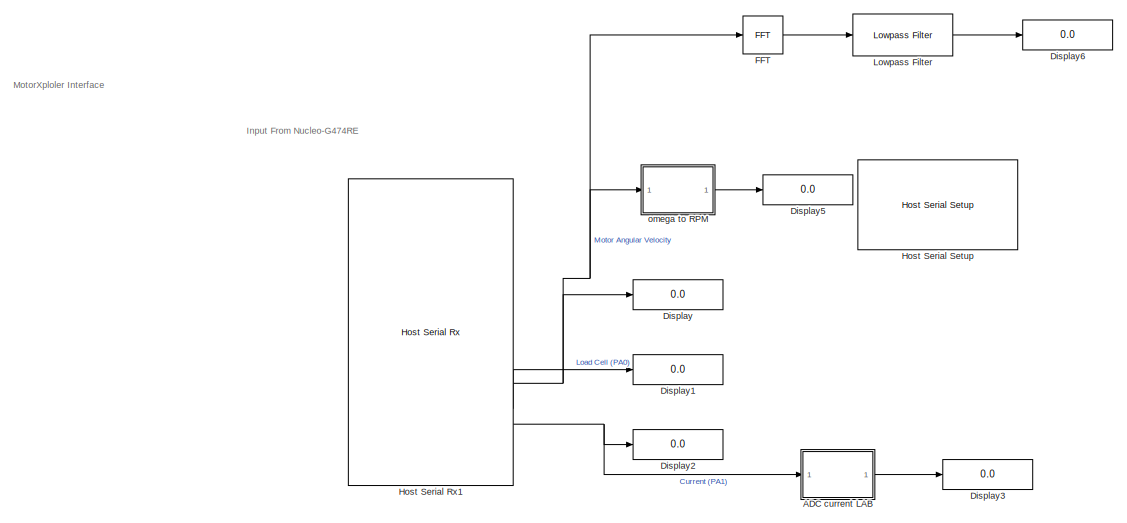
[diagram: root canvas - part 1/2, full width, top band]
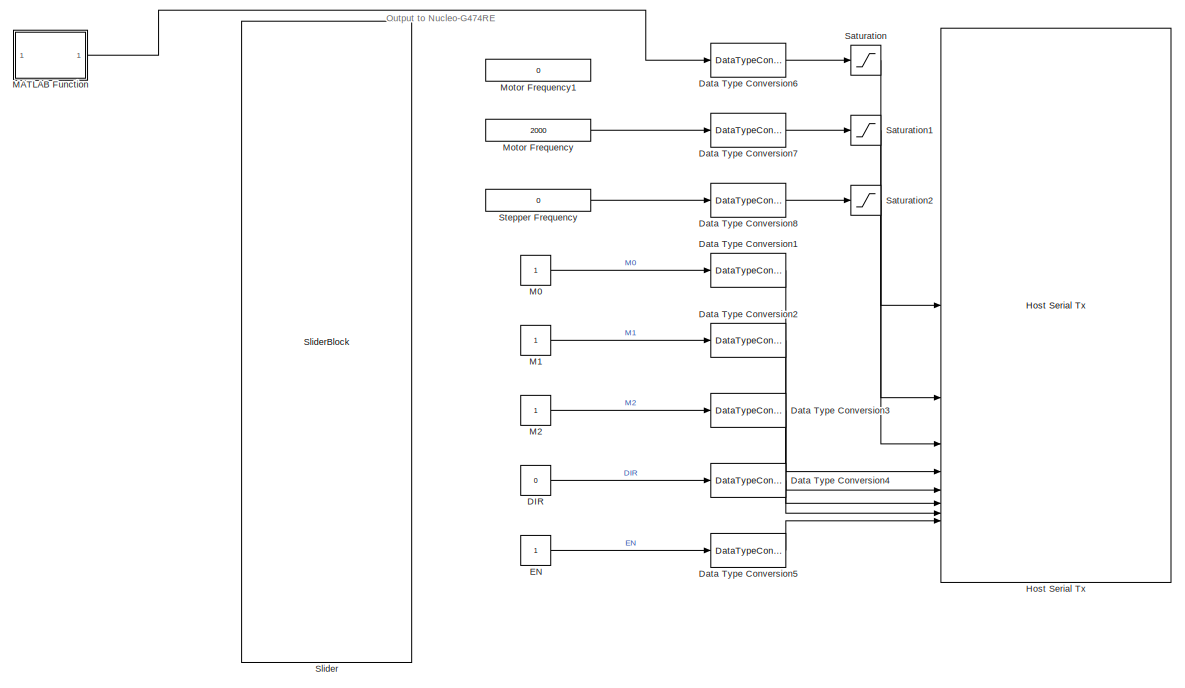
[diagram: root canvas - part 2/2, full width, bottom band]
MODEL slx_57bffe4a3bd2
KIND model
CONFIG AbsTol = auto
CONFIG EnableMultiTasking = off
CONFIG FixedStep = 0.001
CONFIG MaxStep = auto
CONFIG MinStep = auto
CONFIG RelTol = 1e-3
CONFIG SampleTimeConstraint = Unconstrained
CONFIG SolverName = FixedStepAuto
CONFIG StartTime = 0.0
CONFIG StopTime = inf
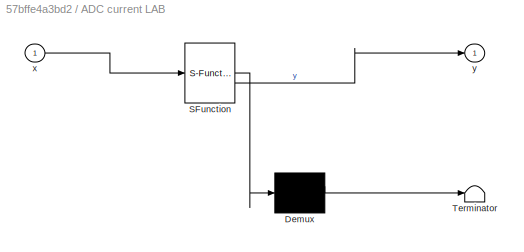
BLOCK [SubSystem] ADC current LAB
  ErrorFcn = Stateflow.Translate.translate
  PermitHierarchicalResolution = ExplicitOnly
  SFBlockType = MATLAB Function
  TreatAsAtomicUnit = on
BLOCK [Demux] ADC current LAB/ Demux 
  Outputs = 1
BLOCK [S-Function] ADC current LAB/ SFunction 
  EnableBusSupport = off
  FunctionName = sf_sfun
  PortCounts = [1 2]
  SFcnIsStateOwnerBlock = off
  SFunctionDeploymentMode = off
  Tag = Stateflow S-Function 2
BLOCK [Terminator] ADC current LAB/ Terminator 
BLOCK [Inport] ADC current LAB/x
BLOCK [Outport] ADC current LAB/y
BLOCK [Constant] DIR
  Value = 0
BLOCK [DataTypeConversion] Data Type Conversion1
  RndMeth = Floor
  SaturateOnIntegerOverflow = off
BLOCK [DataTypeConversion] Data Type Conversion2
  RndMeth = Floor
  SaturateOnIntegerOverflow = off
BLOCK [DataTypeConversion] Data Type Conversion3
  RndMeth = Floor
  SaturateOnIntegerOverflow = off
BLOCK [DataTypeConversion] Data Type Conversion4
  RndMeth = Floor
  SaturateOnIntegerOverflow = off
BLOCK [DataTypeConversion] Data Type Conversion5
  RndMeth = Floor
  SaturateOnIntegerOverflow = off
BLOCK [DataTypeConversion] Data Type Conversion6
  RndMeth = Floor
  SaturateOnIntegerOverflow = off
BLOCK [DataTypeConversion] Data Type Conversion7
  RndMeth = Floor
  SaturateOnIntegerOverflow = off
BLOCK [DataTypeConversion] Data Type Conversion8
  RndMeth = Floor
  SaturateOnIntegerOverflow = off
BLOCK [Display] Display
  Decimation = 1
BLOCK [Display] Display1
  Decimation = 1
BLOCK [Display] Display2
  Decimation = 1
BLOCK [Display] Display3
  Decimation = 1
BLOCK [Display] Display5
  Decimation = 1
BLOCK [Display] Display6
  Decimation = 1
BLOCK [Constant] EN
BLOCK [Reference] FFT  REF=dspxfrm3/FFT
  SourceBlock = dspxfrm3/FFT
  SourceType = FFT
BLOCK [Reference] Host Serial Rx1  REF=amg_usbconverter_n_connect_lib/Host Serial Rx
  SourceBlock = amg_usbconverter_n_connect_lib/Host Serial Rx
  SourceProductName = aMG USB Converter N
  SourceType = amg_usbconverter_n_connect
BLOCK [Reference] Host Serial Setup  REF=amg_usbconverter_n_connect_lib/Host Serial Setup
  SourceBlock = amg_usbconverter_n_connect_lib/Host Serial Setup
  SourceProductName = aMG USB Converter N
  SourceType = amg_usbconverter_n_connect
BLOCK [Reference] Host Serial Tx  REF=amg_usbconverter_n_connect_lib/Host Serial Tx
  SourceBlock = amg_usbconverter_n_connect_lib/Host Serial Tx
  SourceProductName = aMG USB Converter N
  SourceType = amg_usbconverter_n_connect
BLOCK [Reference] Lowpass Filter  REF=dspfdesign/Lowpass Filter
  SourceBlock = dspfdesign/Lowpass Filter
  SourceType = dsp.simulink.LowpassFilter
BLOCK [Constant] M0
BLOCK [Constant] M1
BLOCK [Constant] M2
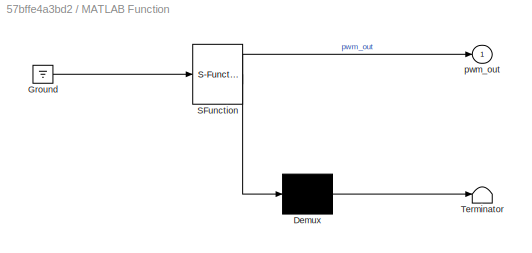
BLOCK [SubSystem] MATLAB Function
  ErrorFcn = Stateflow.Translate.translate
  PermitHierarchicalResolution = ExplicitOnly
  SFBlockType = MATLAB Function
  TreatAsAtomicUnit = on
BLOCK [Demux] MATLAB Function/ Demux 
  Outputs = 1
BLOCK [Ground] MATLAB Function/ Ground 
BLOCK [S-Function] MATLAB Function/ SFunction 
  EnableBusSupport = off
  FunctionName = sf_sfun
  PortCounts = [1 2]
  SFcnIsStateOwnerBlock = off
  SFunctionDeploymentMode = off
  Tag = Stateflow S-Function 1
BLOCK [Terminator] MATLAB Function/ Terminator 
BLOCK [Outport] MATLAB Function/pwm_out
BLOCK [Constant] Motor Frequency
  OutDataTypeStr = single
  Value = 2000
BLOCK [Constant] Motor Frequency1
  OutDataTypeStr = single
  Value = 0
  VectorParams1D = off
BLOCK [Saturate] Saturation
  LowerLimit = -65535
  UpperLimit = 65535
BLOCK [Saturate] Saturation1
  LowerLimit = 0
  UpperLimit = 20000
BLOCK [Saturate] Saturation2
  LowerLimit = 0
  UpperLimit = inf
BLOCK [SliderBlock] Slider
  NameLocation = left
  ScaleMax = 65535
  ScaleMin = -65535
BLOCK [Constant] Stepper Frequency
  OutDataTypeStr = single
  Value = 0
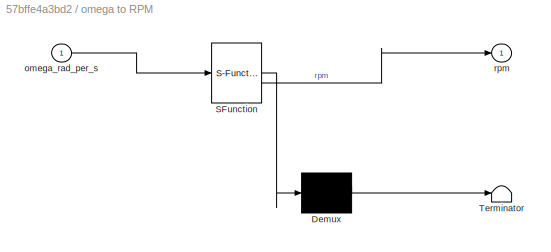
BLOCK [SubSystem] omega to RPM
  ErrorFcn = Stateflow.Translate.translate
  PermitHierarchicalResolution = ExplicitOnly
  SFBlockType = MATLAB Function
  TreatAsAtomicUnit = on
BLOCK [Demux] omega to RPM/ Demux 
  Outputs = 1
BLOCK [S-Function] omega to RPM/ SFunction 
  EnableBusSupport = off
  FunctionName = sf_sfun
  PortCounts = [1 2]
  SFcnIsStateOwnerBlock = off
  SFunctionDeploymentMode = off
  Tag = Stateflow S-Function 3
BLOCK [Terminator] omega to RPM/ Terminator 
BLOCK [Inport] omega to RPM/omega_rad_per_s
BLOCK [Outport] omega to RPM/rpm
ANNOTATION (root): Input From Nucleo-G474RE
ANNOTATION (root): MotorXploler Interface
ANNOTATION (root): Output to Nucleo-G474RE
LINE ADC current LAB:1 -> Display3:1
LINE DIR:1 -> Data Type Conversion4:1
LINE Data Type Conversion1:1 -> Host Serial Tx:4
LINE Data Type Conversion2:1 -> Host Serial Tx:5
LINE Data Type Conversion3:1 -> Host Serial Tx:6
LINE Data Type Conversion4:1 -> Host Serial Tx:7
LINE Data Type Conversion5:1 -> Host Serial Tx:8
LINE Data Type Conversion6:1 -> Saturation:1
LINE Data Type Conversion7:1 -> Saturation1:1
LINE Data Type Conversion8:1 -> Saturation2:1
LINE EN:1 -> Data Type Conversion5:1
LINE FFT:1 -> Lowpass Filter:1
NET Host Serial Rx1:2 -> Display:1, FFT:1, omega to RPM:1
LINE Host Serial Rx1:3 -> Display1:1
NET Host Serial Rx1:4 -> ADC current LAB:1, Display2:1
LINE Lowpass Filter:1 -> Display6:1
LINE M0:1 -> Data Type Conversion1:1
LINE M1:1 -> Data Type Conversion2:1
LINE M2:1 -> Data Type Conversion3:1
LINE MATLAB Function:1 -> Data Type Conversion6:1
LINE Motor Frequency:1 -> Data Type Conversion7:1
LINE Saturation1:1 -> Host Serial Tx:2
LINE Saturation2:1 -> Host Serial Tx:3
LINE Saturation:1 -> Host Serial Tx:1
LINE Stepper Frequency:1 -> Data Type Conversion8:1
LINE omega to RPM:1 -> Display5:1
note: NET lines group one-source signal fan-out (src -> all destinations, sorted); 1:1 wires keep LINE
CHART ADC current LAB states=1 transitions=1
  STATE_LABEL 'eML_blk_kernel()'
  STATE_LABEL 'SCRIPT:\nfunction y = linear_equation_calc(x)\n%LINEAR_EQUATION_CALC คำนวณค่า y จากสมการเส้นตรง y = 0.0312*x - 63.8\n%   \n%   อินพุต:\n%       x - ค่าตัวแปรอิสระ (สามารถเป็นค่าเดี่ยว, เวกเตอร์, หรืออาเรย์)\n%\n%   เอาท์พุต:\n%       y - ค่าตัวแปรตามที่คำนวณได้ (จะมีขนาดเดียวกับ x)\n%\n%   ตัวอย่างการใช้งาน:\n%       >> y_val = linear_equation_calc(100)\n%       y_val = -60.6800\n%\n%       >> x_vec = [1000, 20...<+320ch>'
CHART omega to RPM states=1 transitions=1
  STATE_LABEL 'eML_blk_kernel()'
  STATE_LABEL 'SCRIPT:\nfunction rpm = angular_vel_to_rpm(omega_rad_per_s)\n%ANGULAR_VEL_TO_RPM แปลง Angular Velocity (เรเดียนต่อวินาที) เป็น RPM\n%\n%   อินพุต:\n%       omega_rad_per_s - ค่า Angular Velocity ในหน่วย rad/s (ค่าเดียว)\n%\n%   เอาท์พุต:\n%       rpm - ค่า Rotations Per Minute (รอบต่อนาที) (ค่าเดียว)\n\n    % ค่าคงที่ 60/(2*pi)\n    conversion_factor = 60 / (2 * pi); \n\n    % คำนวณ RPM\n    rpm = omega_rad_per...<+64ch>'
CHART MATLAB Function states=1 transitions=1
  STATE_LABEL 'eML_blk_kernel()'
  STATE_LABEL 'SCRIPT:\nfunction pwm_out = pwm_0_2_sec_timer()\n%#codegen\n% PWM_0_2_SEC_TIMER: สั่ง PWM MAX (65000) เป็นเวลา 0.2 วินาที แล้วหยุด (0)\n%\n%   เอาท์พุต:\n%       pwm_out - ค่า PWM (65000 หรือ 0)\n    \n    %% --- 1. ตั้งค่าพารามิเตอร์ ---\n    max_pwm_cnt = 65000;    % ค่า PWM สูงสุด\n    \n    % *** สมมติฐาน: อัตราการเรียกใช้ฟังก์ชัน (Sampling Frequency) ***\n    % ต้องกำหนดอัตราการเรียกใช้เพื่อแปลง "นับ" เป...<+1098ch>'
CHART  states=0 transitions=0
CHART  states=0 transitions=0
CHART  states=0 transitions=0
